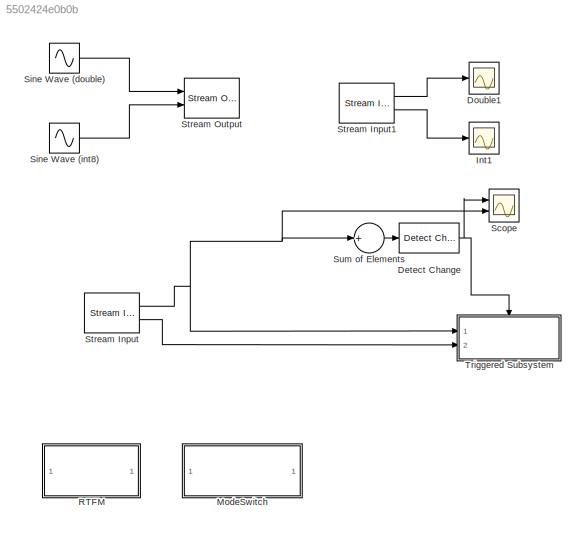
MODEL slx_5502424e0b0b
KIND model
CONFIG AbsTol = auto
CONFIG FixedStep = auto
CONFIG MaxStep = auto
CONFIG MinStep = auto
CONFIG RelTol = 1e-3
CONFIG SampleTimeConstraint = Unconstrained
CONFIG Solver = VariableStepAuto
CONFIG SolverMode = Auto
CONFIG SolverName = VariableStepAuto
CONFIG StartTime = 0.0
CONFIG StopTime = 10.0
BLOCK [Reference] Detect Change  REF=simulink/Logic and Bit
Operations/Detect
Change
  Ports = [1, 1]
  SourceBlock = simulink/Logic and Bit\nOperations/Detect\nChange
  SourceType = Detect Change
BLOCK [Scope] Double1
  Ports = [1]
  ScopeSpecificationString = Simulink.scopes.TimeScopeBlockCfg('CurrentConfiguration', extmgr.ConfigurationSet(extmgr.Configuration('Core','General UI',true),extmgr.Configuration('Core','Source UI',true),extmgr.Configuration('Sources','WiredSimulink',true,'DataLoggingSaveFormat','StructureWithTime','DataLoggingLimitDataPoints',true,'DataLoggingDecimation','1','DataLoggingVariableName','ScopeData2'),extmgr.Configuration('Visua...<+1774ch>
BLOCK [Scope] Int1
  Ports = [1]
  ScopeSpecificationString = Simulink.scopes.TimeScopeBlockCfg('CurrentConfiguration', extmgr.ConfigurationSet(extmgr.Configuration('Core','General UI',true),extmgr.Configuration('Core','Source UI',true),extmgr.Configuration('Sources','WiredSimulink',true,'DataLoggingVariableName','ScopeData3','DataLoggingSaveFormat','StructureWithTime','DataLoggingLimitDataPoints',true,'DataLoggingDecimation','1'),extmgr.Configuration('Visua...<+1827ch>
BLOCK [SubSystem] ModeSwitch
  InitFcn = sldrtexcb_modeswitch('CheckKernel');
  OpenFcn = sldrtexcb_modeswitch(gcbh);
  Ports = []
  RequestExecContextInheritance = off
  Variant = off
BLOCK [SubSystem] RTFM 
  OpenFcn = web([docroot '/rtwin/examples/stream-input-output.html']);
  Ports = []
  RequestExecContextInheritance = off
  Variant = off
BLOCK [Scope] Scope
  NumInputPorts = 2
  Ports = [2]
  ScopeSpecificationString = Simulink.scopes.TimeScopeBlockCfg('CurrentConfiguration', extmgr.ConfigurationSet(extmgr.Configuration('Core','General UI',true),extmgr.Configuration('Core','Source UI',true),extmgr.Configuration('Sources','WiredSimulink',true),extmgr.Configuration('Visuals','Time Domain',true,'SerializedDisplays',{struct('MinYLimReal','-0.125','MaxYLimReal','1.125','YLabelReal','','MinYLimMag','0.00000','MaxYLimM...<+2127ch>
BLOCK [Sin] Sine Wave (double)
  Amplitude = 1:4
  Frequency = 2
  Ports = [0, 1]
  SampleTime = 0
BLOCK [Sin] Sine Wave (int8)
  Amplitude = 1:8
  Frequency = 2
  Ports = [0, 1]
  SampleTime = 0
BLOCK [Reference] Stream Input  REF=sldrtlib/Stream Input
  AttributesFormatString = Standard Devices\nUDP Protocol [9010h]
  Ports = [0, 2]
  SourceBlock = sldrtlib/Stream Input
  SourceType = Simulink Desktop Real-Time Stream Input
BLOCK [Reference] Stream Input1  REF=sldrtlib/Stream Input
  AttributesFormatString = Standard Devices\nUDP Protocol [2EE0h]
  Ports = [0, 2]
  SourceBlock = sldrtlib/Stream Input
  SourceType = Simulink Desktop Real-Time Stream Input
BLOCK [Reference] Stream Output  REF=sldrtlib/Stream Output
  AttributesFormatString = Standard Devices\nUDP Protocol [9000h]
  Ports = [2]
  SourceBlock = sldrtlib/Stream Output
  SourceType = Simulink Desktop Real-Time Stream Output
BLOCK [Sum] Sum of Elements
  InputSameDT = off
  Inputs = +
  OutDataTypeStr = Inherit: Inherit via internal rule
  Ports = [1, 1]
  SaturateOnIntegerOverflow = off
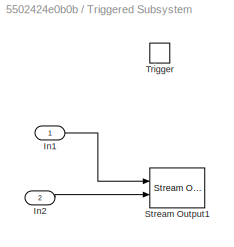
BLOCK [SubSystem] Triggered Subsystem
  Ports = [2, 0, 0, 1]
  RequestExecContextInheritance = off
  TreatAsAtomicUnit = on
  Variant = off
BLOCK [Inport] Triggered Subsystem/In1
  IconDisplay = Port number
BLOCK [Inport] Triggered Subsystem/In2
  IconDisplay = Port number
  Port = 2
BLOCK [Reference] Triggered Subsystem/Stream Output1  REF=sldrtlib/Stream Output
  AttributesFormatString = Standard Devices\nUDP Protocol [2EE1h]
  Ports = [2]
  SourceBlock = sldrtlib/Stream Output
  SourceType = Simulink Desktop Real-Time Stream Output
BLOCK [TriggerPort] Triggered Subsystem/Trigger
  Ports = []
  StatesWhenEnabling = reset
  VariantControl = Variant
NET Detect Change:1 -> Scope:1, Triggered Subsystem:trigger
LINE Sine Wave (double):1 -> Stream Output:1
LINE Sine Wave (int8):1 -> Stream Output:2
LINE Stream Input1:1 -> Double1:1
LINE Stream Input1:2 -> Int1:1
NET Stream Input:1 -> Scope:2, Sum of Elements:1, Triggered Subsystem:1
LINE Stream Input:2 -> Triggered Subsystem:2
LINE Sum of Elements:1 -> Detect Change:1
LINE Triggered Subsystem/In1:1 -> Triggered Subsystem/Stream Output1:1
LINE Triggered Subsystem/In2:1 -> Triggered Subsystem/Stream Output1:2
note: NET lines group one-source signal fan-out (src -> all destinations, sorted); 1:1 wires keep LINE
